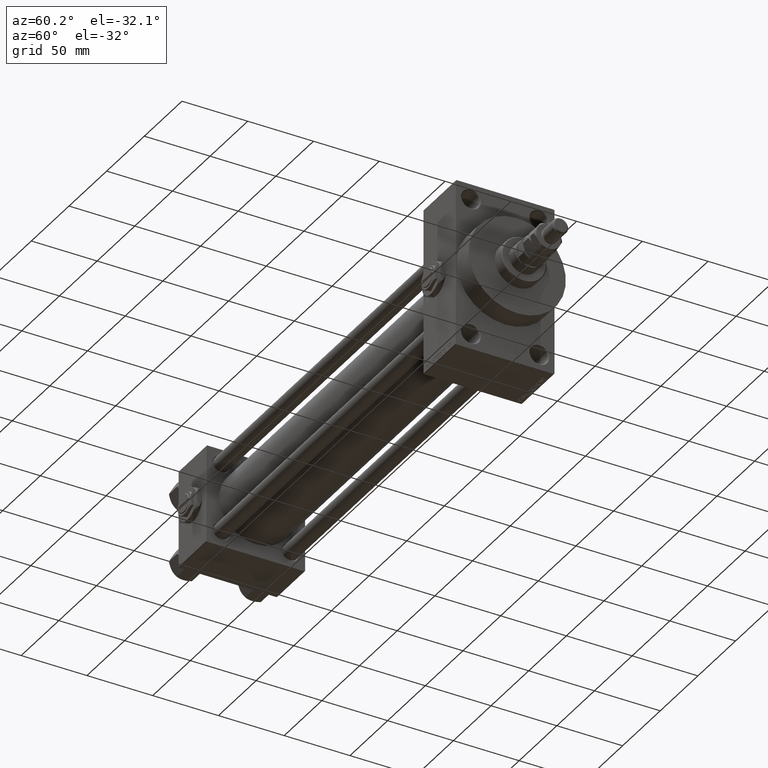
[diagram: clean part render]
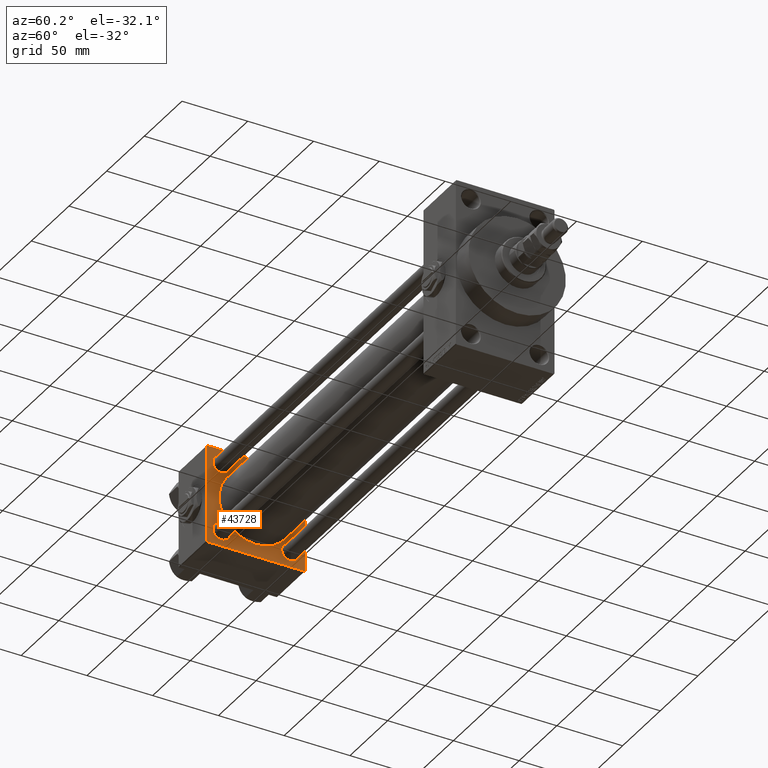
[diagram: same view with one face highlighted and labeled with its STEP entity id]
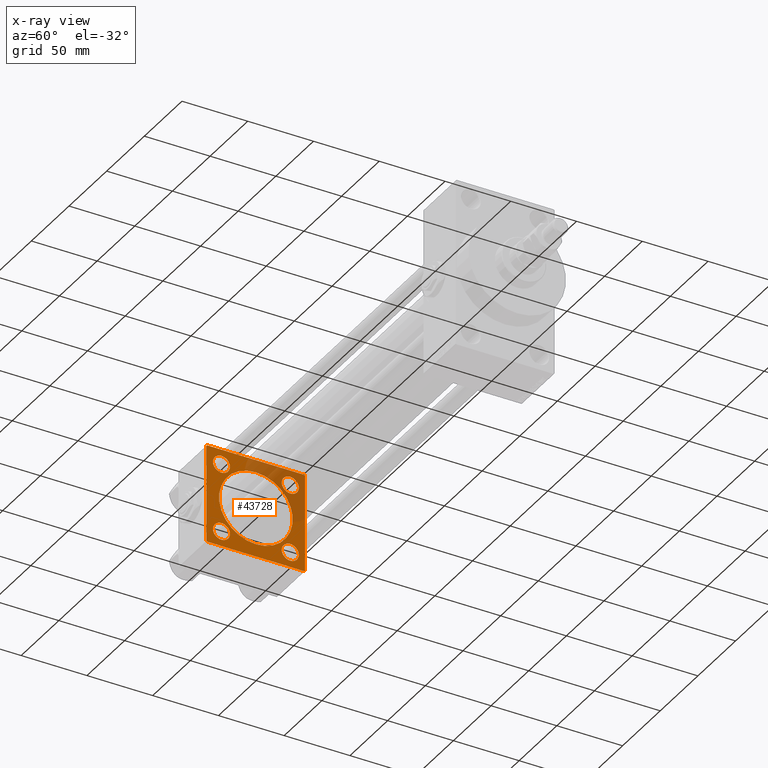
[diagram: x-ray of the same camera — body ghosted, the highlighted face saturated]
A machine part, auxiliary view. The second image highlights one B-rep face of the part: STEP entity #43728.
The next image is the same camera in x-ray: the body ghosted, the highlighted face saturated — about 27% of this face is hidden behind the body in this view.
In plain terms, the highlighted planar face has unit normal (-1, 0, 0).
Its self-contained STEP definition (entity closure, byte-faithful):
#65 = CARTESIAN_POINT ( 'NONE',  ( 37.00000000000000000, 26.14999999999999858, -19.65000000000000213 ) ) ;
#590 = VECTOR ( 'NONE', #19021, 1000.000000000000000 ) ;
#1968 = ORIENTED_EDGE ( 'NONE', *, *, #26318, .T. ) ;
#2327 = EDGE_CURVE ( 'NONE', #18170, #6661, #49024, .T. ) ;
#3645 = VERTEX_POINT ( 'NONE', #13546 ) ;
#3867 = LINE ( 'NONE', #7470, #7227 ) ;
#4363 = VERTEX_POINT ( 'NONE', #45837 ) ;
#4660 = DIRECTION ( 'NONE',  ( 0.000000000000000000, -1.000000000000000000, -9.251858538542971581E-17 ) ) ;
#4806 = DIRECTION ( 'NONE',  ( -1.000000000000000000, 0.000000000000000000, -0.000000000000000000 ) ) ;
#4915 = CARTESIAN_POINT ( 'NONE',  ( 37.00000000000000000, 26.14999999999999858, 26.15000000000000213 ) ) ;
#4943 = DIRECTION ( 'NONE',  ( 1.000000000000000000, -0.000000000000000000, 0.000000000000000000 ) ) ;
#5248 = AXIS2_PLACEMENT_3D ( 'NONE', #19089, #11625, #19845 ) ;
#5428 = EDGE_CURVE ( 'NONE', #4363, #47433, #3867, .T. ) ;
#5435 = CARTESIAN_POINT ( 'NONE',  ( 37.00000000000000000, 37.49999999999999289, -36.99999999999998579 ) ) ;
#5763 = CARTESIAN_POINT ( 'NONE',  ( 37.00000000000000000, -26.14999999999999147, 19.65000000000005542 ) ) ;
#5951 = CIRCLE ( 'NONE', #37167, 28.00000000000000000 ) ;
#6337 = EDGE_CURVE ( 'NONE', #28533, #26341, #47580, .T. ) ;
#6465 = EDGE_CURVE ( 'NONE', #31302, #22224, #33541, .T. ) ;
#6661 = VERTEX_POINT ( 'NONE', #9126 ) ;
#6772 = CIRCLE ( 'NONE', #42092, 6.500000000000002665 ) ;
#6783 = CARTESIAN_POINT ( 'NONE',  ( 37.00000000000000000, 26.14999999999999858, 32.65000000000001279 ) ) ;
#7111 = DIRECTION ( 'NONE',  ( 0.000000000000000000, 9.251858538542971581E-17, -1.000000000000000000 ) ) ;
#7227 = VECTOR ( 'NONE', #34984, 1000.000000000000000 ) ;
#7279 = ORIENTED_EDGE ( 'NONE', *, *, #36250, .T. ) ;
#7369 = EDGE_CURVE ( 'NONE', #30018, #26341, #29429, .T. ) ;
#7470 = CARTESIAN_POINT ( 'NONE',  ( 37.00000000000000000, -37.00000000000002132, -37.50000000000000711 ) ) ;
#7477 = DIRECTION ( 'NONE',  ( -0.000000000000000000, 0.7071067811865474617, 0.7071067811865474617 ) ) ;
#7927 = EDGE_LOOP ( 'NONE', ( #23373, #37474 ) ) ;
#8514 = LINE ( 'NONE', #24196, #34433 ) ;
#8549 = DIRECTION ( 'NONE',  ( 0.000000000000000000, 0.000000000000000000, 1.000000000000000000 ) ) ;
#9126 = CARTESIAN_POINT ( 'NONE',  ( 37.00000000000000000, -26.14999999999999147, -32.64999999999995595 ) ) ;
#9930 = ORIENTED_EDGE ( 'NONE', *, *, #15653, .F. ) ;
#10169 = CIRCLE ( 'NONE', #38941, 6.500000000000002665 ) ;
#10231 = CARTESIAN_POINT ( 'NONE',  ( 37.00000000000000000, -26.14999999999999147, -26.15000000000000924 ) ) ;
#10428 = VERTEX_POINT ( 'NONE', #14606 ) ;
#11043 = LINE ( 'NONE', #31358, #590 ) ;
#11193 = VECTOR ( 'NONE', #18836, 1000.000000000000114 ) ;
#11241 = VERTEX_POINT ( 'NONE', #17961 ) ;
#11397 = DIRECTION ( 'NONE',  ( 0.000000000000000000, 0.000000000000000000, 1.000000000000000000 ) ) ;
#11469 = EDGE_CURVE ( 'NONE', #12490, #12374, #37714, .T. ) ;
#11482 = CARTESIAN_POINT ( 'NONE',  ( 37.00000000000000000, -37.50000000000000711, 37.49999999999999289 ) ) ;
#11625 = DIRECTION ( 'NONE',  ( -1.000000000000000000, 0.000000000000000000, -0.000000000000000000 ) ) ;
#11775 = CARTESIAN_POINT ( 'NONE',  ( 37.00000000000000000, -37.00000000000002132, -37.50000000000000711 ) ) ;
#12374 = VERTEX_POINT ( 'NONE', #39742 ) ;
#12490 = VERTEX_POINT ( 'NONE', #5763 ) ;
#13068 = CARTESIAN_POINT ( 'NONE',  ( 37.00000000000000000, 26.14999999999999858, -32.65000000000000568 ) ) ;
#13124 = AXIS2_PLACEMENT_3D ( 'NONE', #17527, #28839, #33220 ) ;
#13546 = CARTESIAN_POINT ( 'NONE',  ( 37.00000000000000000, -37.00000000000000711, 37.49999999999999289 ) ) ;
#14606 = CARTESIAN_POINT ( 'NONE',  ( 37.00000000000000000, -37.50000000000000711, 36.99999999999999289 ) ) ;
#14751 = EDGE_CURVE ( 'NONE', #3645, #10428, #38893, .T. ) ;
#14876 = CARTESIAN_POINT ( 'NONE',  ( 36.99999999999997868, -2.602085213965210642E-15, 28.00000000000000000 ) ) ;
#14941 = ORIENTED_EDGE ( 'NONE', *, *, #2327, .T. ) ;
#14970 = FACE_BOUND ( 'NONE', #32673, .T. ) ;
#15017 = CARTESIAN_POINT ( 'NONE',  ( 37.00000000000000000, 36.99999999999999289, 37.50000000000000000 ) ) ;
#15253 = CIRCLE ( 'NONE', #43999, 6.500000000000002665 ) ;
#15535 = LINE ( 'NONE', #15017, #38842 ) ;
#15653 = EDGE_CURVE ( 'NONE', #28533, #47433, #11043, .T. ) ;
#16219 = CARTESIAN_POINT ( 'NONE',  ( 36.99999999999997868, 8.269258236473784371E-16, -28.00000000000000000 ) ) ;
#16360 = CARTESIAN_POINT ( 'NONE',  ( 37.00000000000000000, 26.14999999999999858, -26.15000000000000213 ) ) ;
#16734 = DIRECTION ( 'NONE',  ( -1.000000000000000000, 0.000000000000000000, -0.000000000000000000 ) ) ;
#17107 = DIRECTION ( 'NONE',  ( 0.000000000000000000, 0.000000000000000000, 1.000000000000000000 ) ) ;
#17119 = AXIS2_PLACEMENT_3D ( 'NONE', #32376, #36490, #20797 ) ;
#17185 = ORIENTED_EDGE ( 'NONE', *, *, #23488, .T. ) ;
#17527 = CARTESIAN_POINT ( 'NONE',  ( 37.00000000000000000, 26.14999999999999858, 26.15000000000000213 ) ) ;
#17648 = EDGE_LOOP ( 'NONE', ( #9930, #38059, #37473, #23364, #17185, #18742, #7279, #28151 ) ) ;
#17961 = CARTESIAN_POINT ( 'NONE',  ( 37.00000000000000000, 36.99999999999999289, 37.50000000000000000 ) ) ;
#18170 = VERTEX_POINT ( 'NONE', #42834 ) ;
#18456 = DIRECTION ( 'NONE',  ( 0.000000000000000000, 0.000000000000000000, 1.000000000000000000 ) ) ;
#18742 = ORIENTED_EDGE ( 'NONE', *, *, #14751, .T. ) ;
#18836 = DIRECTION ( 'NONE',  ( -0.000000000000000000, -0.7071067811865474617, -0.7071067811865474617 ) ) ;
#19021 = DIRECTION ( 'NONE',  ( 0.000000000000000000, -1.000000000000000000, -9.251858538542972814E-17 ) ) ;
#19089 = CARTESIAN_POINT ( 'NONE',  ( 37.00000000000000000, 0.000000000000000000, 0.000000000000000000 ) ) ;
#19845 = DIRECTION ( 'NONE',  ( -0.000000000000000000, 0.000000000000000000, 1.000000000000000000 ) ) ;
#19895 = DIRECTION ( 'NONE',  ( 0.000000000000000000, -0.7071067811865474617, 0.7071067811865474617 ) ) ;
#20797 = DIRECTION ( 'NONE',  ( 0.000000000000000000, 0.000000000000000000, 1.000000000000000000 ) ) ;
#21189 = DIRECTION ( 'NONE',  ( 0.000000000000000000, 0.000000000000000000, 1.000000000000000000 ) ) ;
#21518 = ORIENTED_EDGE ( 'NONE', *, *, #27433, .T. ) ;
#22056 = DIRECTION ( 'NONE',  ( -1.000000000000000000, 0.000000000000000000, -0.000000000000000000 ) ) ;
#22069 = VECTOR ( 'NONE', #34051, 1000.000000000000000 ) ;
#22224 = VERTEX_POINT ( 'NONE', #16219 ) ;
#23010 = CIRCLE ( 'NONE', #13124, 6.500000000000002665 ) ;
#23364 = ORIENTED_EDGE ( 'NONE', *, *, #40985, .T. ) ;
#23373 = ORIENTED_EDGE ( 'NONE', *, *, #47563, .T. ) ;
#23488 = EDGE_CURVE ( 'NONE', #11241, #3645, #8514, .T. ) ;
#24196 = CARTESIAN_POINT ( 'NONE',  ( 37.00000000000000000, 37.49999999999999289, 37.50000000000000000 ) ) ;
#24427 = DIRECTION ( 'NONE',  ( -1.000000000000000000, 0.000000000000000000, -0.000000000000000000 ) ) ;
#25069 = DIRECTION ( 'NONE',  ( -1.000000000000000000, 0.000000000000000000, -0.000000000000000000 ) ) ;
#25366 = AXIS2_PLACEMENT_3D ( 'NONE', #40299, #4806, #36188 ) ;
#25658 = VECTOR ( 'NONE', #7111, 1000.000000000000000 ) ;
#25666 = ORIENTED_EDGE ( 'NONE', *, *, #11469, .T. ) ;
#25845 = CARTESIAN_POINT ( 'NONE',  ( 37.00000000000000000, 26.14999999999999858, -26.15000000000000213 ) ) ;
#26318 = EDGE_CURVE ( 'NONE', #26890, #46806, #23010, .T. ) ;
#26341 = VERTEX_POINT ( 'NONE', #5435 ) ;
#26794 = FACE_OUTER_BOUND ( 'NONE', #17648, .T. ) ;
#26890 = VERTEX_POINT ( 'NONE', #6783 ) ;
#27022 = CARTESIAN_POINT ( 'NONE',  ( 37.00000000000000000, 37.49999999999999289, -36.99999999999998579 ) ) ;
#27433 = EDGE_CURVE ( 'NONE', #12374, #12490, #40255, .T. ) ;
#28151 = ORIENTED_EDGE ( 'NONE', *, *, #5428, .T. ) ;
#28392 = CARTESIAN_POINT ( 'NONE',  ( 37.00000000000000000, -26.14999999999999147, -26.15000000000000924 ) ) ;
#28479 = CARTESIAN_POINT ( 'NONE',  ( 37.00000000000000000, 36.99999999999997868, -37.50000000000000000 ) ) ;
#28533 = VERTEX_POINT ( 'NONE', #28479 ) ;
#28839 = DIRECTION ( 'NONE',  ( -1.000000000000000000, 0.000000000000000000, -0.000000000000000000 ) ) ;
#29310 = AXIS2_PLACEMENT_3D ( 'NONE', #28392, #44100, #21189 ) ;
#29429 = LINE ( 'NONE', #38162, #22069 ) ;
#29603 = AXIS2_PLACEMENT_3D ( 'NONE', #43984, #24427, #40131 ) ;
#30018 = VERTEX_POINT ( 'NONE', #33904 ) ;
#30074 = EDGE_CURVE ( 'NONE', #6661, #18170, #34646, .T. ) ;
#30403 = CARTESIAN_POINT ( 'NONE',  ( 37.00000000000000000, -37.50000000000000711, 36.99999999999999289 ) ) ;
#30658 = FACE_BOUND ( 'NONE', #36744, .T. ) ;
#31302 = VERTEX_POINT ( 'NONE', #14876 ) ;
#31358 = CARTESIAN_POINT ( 'NONE',  ( 37.00000000000000000, 37.49999999999999289, -37.50000000000000000 ) ) ;
#31535 = VERTEX_POINT ( 'NONE', #65 ) ;
#32376 = CARTESIAN_POINT ( 'NONE',  ( 36.99999999999997868, -2.602085213965210642E-15, 0.000000000000000000 ) ) ;
#32593 = VERTEX_POINT ( 'NONE', #13068 ) ;
#32673 = EDGE_LOOP ( 'NONE', ( #25666, #21518 ) ) ;
#32956 = EDGE_CURVE ( 'NONE', #31535, #32593, #6772, .T. ) ;
#33220 = DIRECTION ( 'NONE',  ( 0.000000000000000000, 0.000000000000000000, 1.000000000000000000 ) ) ;
#33541 = CIRCLE ( 'NONE', #17119, 28.00000000000000000 ) ;
#33674 = EDGE_LOOP ( 'NONE', ( #46794, #43685 ) ) ;
#33904 = CARTESIAN_POINT ( 'NONE',  ( 37.00000000000000000, 37.49999999999999289, 37.00000000000000000 ) ) ;
#34051 = DIRECTION ( 'NONE',  ( 0.000000000000000000, 0.000000000000000000, -1.000000000000000000 ) ) ;
#34433 = VECTOR ( 'NONE', #4660, 1000.000000000000000 ) ;
#34525 = FACE_BOUND ( 'NONE', #40055, .T. ) ;
#34646 = CIRCLE ( 'NONE', #36288, 6.499999999999946709 ) ;
#34798 = CARTESIAN_POINT ( 'NONE',  ( 37.00000000000000000, 26.14999999999999858, 19.64999999999999858 ) ) ;
#34984 = DIRECTION ( 'NONE',  ( 0.000000000000000000, 0.7071067811865524577, -0.7071067811865426878 ) ) ;
#36188 = DIRECTION ( 'NONE',  ( 0.000000000000000000, 0.000000000000000000, 1.000000000000000000 ) ) ;
#36250 = EDGE_CURVE ( 'NONE', #10428, #4363, #50061, .T. ) ;
#36288 = AXIS2_PLACEMENT_3D ( 'NONE', #10231, #22056, #18456 ) ;
#36490 = DIRECTION ( 'NONE',  ( 1.000000000000000000, -0.000000000000000000, 0.000000000000000000 ) ) ;
#36744 = EDGE_LOOP ( 'NONE', ( #40978, #1968 ) ) ;
#37167 = AXIS2_PLACEMENT_3D ( 'NONE', #43798, #4943, #8549 ) ;
#37473 = ORIENTED_EDGE ( 'NONE', *, *, #7369, .F. ) ;
#37474 = ORIENTED_EDGE ( 'NONE', *, *, #32956, .T. ) ;
#37714 = CIRCLE ( 'NONE', #25366, 6.499999999999953815 ) ;
#38059 = ORIENTED_EDGE ( 'NONE', *, *, #6337, .T. ) ;
#38162 = CARTESIAN_POINT ( 'NONE',  ( 37.00000000000000000, 37.49999999999999289, 37.50000000000000000 ) ) ;
#38842 = VECTOR ( 'NONE', #19895, 1000.000000000000114 ) ;
#38893 = LINE ( 'NONE', #30403, #11193 ) ;
#38918 = EDGE_CURVE ( 'NONE', #46806, #26890, #10169, .T. ) ;
#38941 = AXIS2_PLACEMENT_3D ( 'NONE', #4915, #16734, #48869 ) ;
#39742 = CARTESIAN_POINT ( 'NONE',  ( 37.00000000000000000, -26.14999999999999147, 32.64999999999996305 ) ) ;
#40055 = EDGE_LOOP ( 'NONE', ( #43692, #14941 ) ) ;
#40114 = EDGE_CURVE ( 'NONE', #22224, #31302, #5951, .T. ) ;
#40131 = DIRECTION ( 'NONE',  ( 0.000000000000000000, 0.000000000000000000, 1.000000000000000000 ) ) ;
#40255 = CIRCLE ( 'NONE', #29603, 6.499999999999953815 ) ;
#40299 = CARTESIAN_POINT ( 'NONE',  ( 37.00000000000000000, -26.14999999999999147, 26.15000000000000924 ) ) ;
#40978 = ORIENTED_EDGE ( 'NONE', *, *, #38918, .T. ) ;
#40985 = EDGE_CURVE ( 'NONE', #30018, #11241, #15535, .T. ) ;
#42092 = AXIS2_PLACEMENT_3D ( 'NONE', #16360, #25069, #17107 ) ;
#42499 = PLANE ( 'NONE',  #5248 ) ;
#42834 = CARTESIAN_POINT ( 'NONE',  ( 37.00000000000000000, -26.14999999999999147, -19.65000000000006253 ) ) ;
#43685 = ORIENTED_EDGE ( 'NONE', *, *, #40114, .F. ) ;
#43692 = ORIENTED_EDGE ( 'NONE', *, *, #30074, .T. ) ;
#43728 = ADVANCED_FACE ( 'NONE', ( #34525, #50206, #14970, #30658, #46349, #26794 ), #42499, .F. ) ;
#43798 = CARTESIAN_POINT ( 'NONE',  ( 36.99999999999997868, -2.602085213965210642E-15, 0.000000000000000000 ) ) ;
#43984 = CARTESIAN_POINT ( 'NONE',  ( 37.00000000000000000, -26.14999999999999147, 26.15000000000000924 ) ) ;
#43999 = AXIS2_PLACEMENT_3D ( 'NONE', #25845, #44904, #11397 ) ;
#44100 = DIRECTION ( 'NONE',  ( -1.000000000000000000, 0.000000000000000000, -0.000000000000000000 ) ) ;
#44904 = DIRECTION ( 'NONE',  ( -1.000000000000000000, 0.000000000000000000, -0.000000000000000000 ) ) ;
#45035 = VECTOR ( 'NONE', #7477, 1000.000000000000114 ) ;
#45837 = CARTESIAN_POINT ( 'NONE',  ( 37.00000000000000000, -37.50000000000000000, -37.00000000000003553 ) ) ;
#46349 = FACE_BOUND ( 'NONE', #33674, .T. ) ;
#46794 = ORIENTED_EDGE ( 'NONE', *, *, #6465, .F. ) ;
#46806 = VERTEX_POINT ( 'NONE', #34798 ) ;
#47433 = VERTEX_POINT ( 'NONE', #11775 ) ;
#47563 = EDGE_CURVE ( 'NONE', #32593, #31535, #15253, .T. ) ;
#47580 = LINE ( 'NONE', #27022, #45035 ) ;
#48869 = DIRECTION ( 'NONE',  ( 0.000000000000000000, 0.000000000000000000, 1.000000000000000000 ) ) ;
#49024 = CIRCLE ( 'NONE', #29310, 6.499999999999946709 ) ;
#50061 = LINE ( 'NONE', #11482, #25658 ) ;
#50206 = FACE_BOUND ( 'NONE', #7927, .T. ) ;